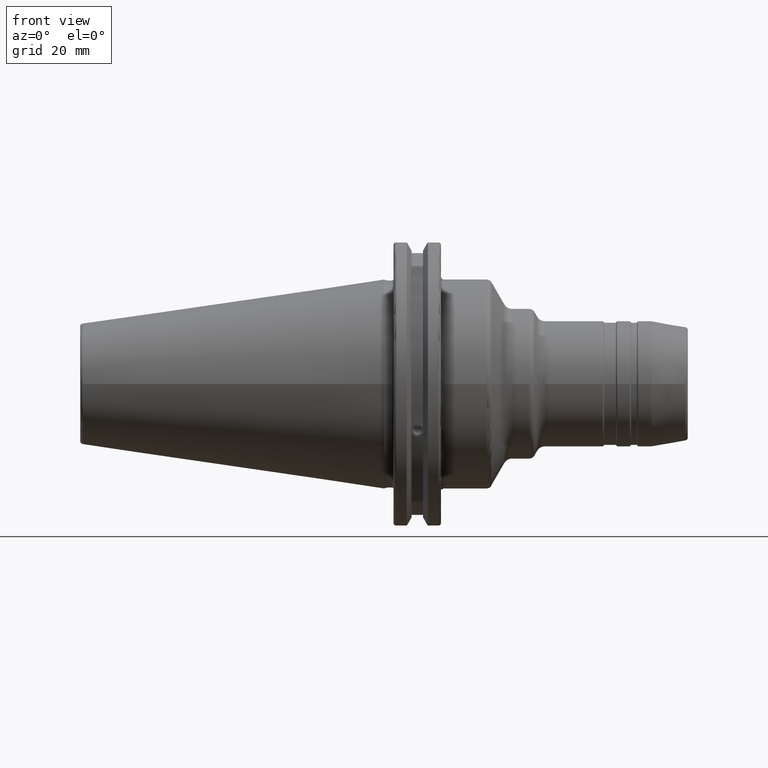
[diagram: clean part render]
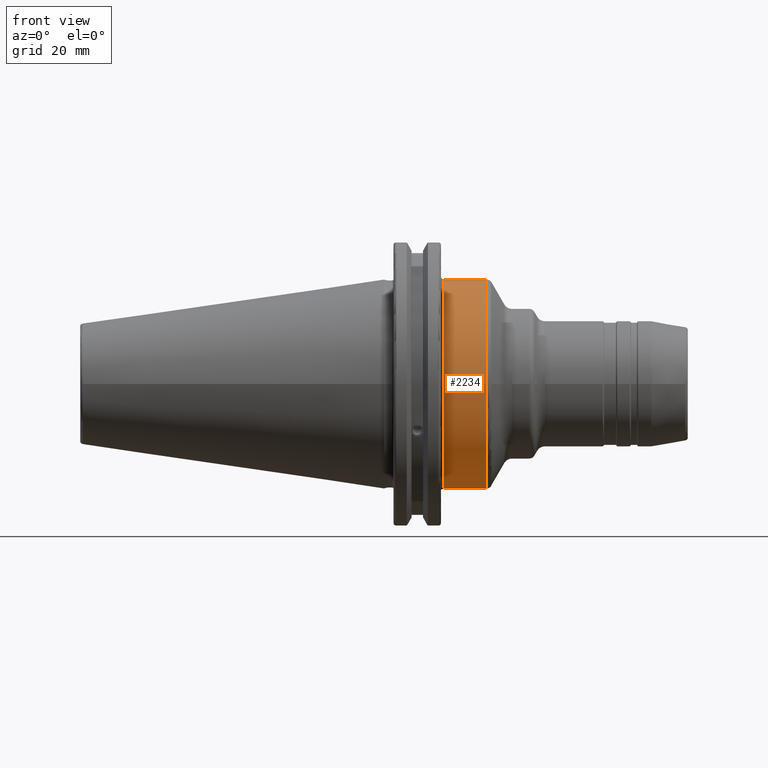
[diagram: same view with one face highlighted and labeled with its STEP entity id]
A machine part, front view. The second image highlights one B-rep face of the part: STEP entity #2234.
In plain terms, the highlighted cylindrical surface (bore or boss wall) has radius 34.95 mm, axis along (1, 0, 0).
Its self-contained STEP definition (entity closure, byte-faithful):
#199=FACE_OUTER_BOUND('',#313,.T.);
#313=EDGE_LOOP('',(#1670,#1671,#1672,#1673,#1674,#1675,#1676,#1677));
#430=LINE('',#3686,#537);
#537=VECTOR('',#2921,34.95);
#721=CIRCLE('',#2460,34.95);
#722=CIRCLE('',#2461,34.95);
#723=CIRCLE('',#2462,34.95);
#724=CIRCLE('',#2464,34.95);
#725=CIRCLE('',#2465,34.95);
#726=CIRCLE('',#2466,34.95);
#910=VERTEX_POINT('',#3677);
#911=VERTEX_POINT('',#3679);
#912=VERTEX_POINT('',#3681);
#913=VERTEX_POINT('',#3685);
#914=VERTEX_POINT('',#3687);
#915=VERTEX_POINT('',#3689);
#1200=EDGE_CURVE('',#910,#911,#721,.T.);
#1201=EDGE_CURVE('',#911,#912,#722,.T.);
#1202=EDGE_CURVE('',#912,#910,#723,.T.);
#1203=EDGE_CURVE('',#911,#913,#430,.T.);
#1204=EDGE_CURVE('',#914,#913,#724,.T.);
#1205=EDGE_CURVE('',#915,#914,#725,.T.);
#1206=EDGE_CURVE('',#913,#915,#726,.T.);
#1670=ORIENTED_EDGE('',*,*,#1202,.F.);
#1671=ORIENTED_EDGE('',*,*,#1201,.F.);
#1672=ORIENTED_EDGE('',*,*,#1203,.T.);
#1673=ORIENTED_EDGE('',*,*,#1204,.F.);
#1674=ORIENTED_EDGE('',*,*,#1205,.F.);
#1675=ORIENTED_EDGE('',*,*,#1206,.F.);
#1676=ORIENTED_EDGE('',*,*,#1203,.F.);
#1677=ORIENTED_EDGE('',*,*,#1200,.F.);
#2180=CYLINDRICAL_SURFACE('',#2463,34.95);
#2234=ADVANCED_FACE('',(#199),#2180,.T.);
#2460=AXIS2_PLACEMENT_3D('',#3680,#2913,#2914);
#2461=AXIS2_PLACEMENT_3D('',#3682,#2915,#2916);
#2462=AXIS2_PLACEMENT_3D('',#3683,#2917,#2918);
#2463=AXIS2_PLACEMENT_3D('',#3684,#2919,#2920);
#2464=AXIS2_PLACEMENT_3D('',#3688,#2922,#2923);
#2465=AXIS2_PLACEMENT_3D('',#3690,#2924,#2925);
#2466=AXIS2_PLACEMENT_3D('',#3691,#2926,#2927);
#2913=DIRECTION('center_axis',(1.,0.,0.));
#2914=DIRECTION('ref_axis',(0.,-1.,1.83697019872103E-16));
#2915=DIRECTION('center_axis',(1.,0.,0.));
#2916=DIRECTION('ref_axis',(0.,-1.,1.83697019872103E-16));
#2917=DIRECTION('center_axis',(1.,0.,0.));
#2918=DIRECTION('ref_axis',(0.,-1.,1.83697019872103E-16));
#2919=DIRECTION('center_axis',(1.,0.,0.));
#2920=DIRECTION('ref_axis',(0.,1.,0.));
#2921=DIRECTION('',(-1.,0.,0.));
#2922=DIRECTION('center_axis',(-1.,0.,0.));
#2923=DIRECTION('ref_axis',(0.,-1.,-1.22464679914735E-16));
#2924=DIRECTION('center_axis',(-1.,0.,0.));
#2925=DIRECTION('ref_axis',(0.,-1.,-1.22464679914735E-16));
#2926=DIRECTION('center_axis',(-1.,0.,0.));
#2927=DIRECTION('ref_axis',(0.,-1.,-1.22464679914735E-16));
#3677=CARTESIAN_POINT('',(34.2728330668327,-4.28014056302E-15,34.95));
#3679=CARTESIAN_POINT('',(34.2728330668327,-34.95,-4.28014056302E-15));
#3680=CARTESIAN_POINT('Origin',(34.2728330668327,0.,0.));
#3681=CARTESIAN_POINT('',(34.2728330668327,34.95,-2.14007028151E-15));
#3682=CARTESIAN_POINT('Origin',(34.2728330668327,0.,0.));
#3683=CARTESIAN_POINT('Origin',(34.2728330668327,0.,0.));
#3684=CARTESIAN_POINT('Origin',(27.238766802606,0.,0.));
#3685=CARTESIAN_POINT('',(20.05,-34.95,-4.28014056302E-15));
#3686=CARTESIAN_POINT('',(27.238766802606,-34.95,-4.28014056302E-15));
#3687=CARTESIAN_POINT('',(20.05,-4.28014056302E-15,-34.95));
#3688=CARTESIAN_POINT('Origin',(20.05,0.,0.));
#3689=CARTESIAN_POINT('',(20.05,34.95,0.));
#3690=CARTESIAN_POINT('Origin',(20.05,0.,0.));
#3691=CARTESIAN_POINT('Origin',(20.05,0.,0.));